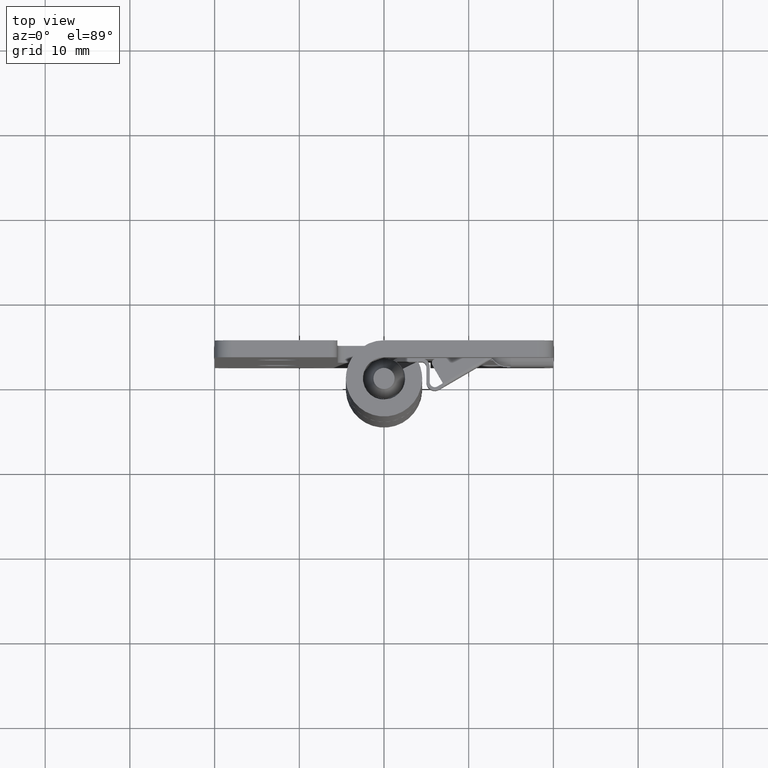
[diagram: clean part render]
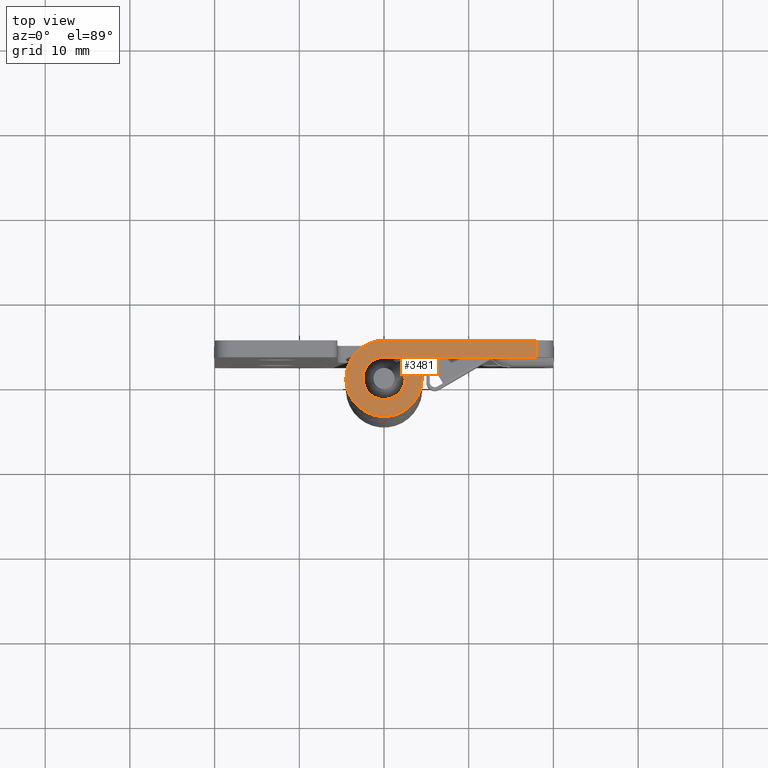
[diagram: same view with one face highlighted and labeled with its STEP entity id]
A machine part, top view. The second image highlights one B-rep face of the part: STEP entity #3481.
In plain terms, the highlighted face is a freeform B-spline surface patch.
Its self-contained STEP definition (entity closure, byte-faithful):
#3377=CARTESIAN_POINT('',(-5.623858634750180,4.949546826503971,75.0));
#3378=CARTESIAN_POINT('',(19.123874783371061,4.949546826503971,75.0));
#3379=CARTESIAN_POINT('',(-5.623858634750180,-4.949483883337430,75.0));
#3380=CARTESIAN_POINT('',(19.123874783371061,-4.949483883337430,75.0));
#3381=B_SPLINE_SURFACE_WITH_KNOTS('',1,1,((#3377,#3379),(#3378,#3380)),.UNSPECIFIED.,.F.,.F.,.U.,(2,2),(2,2),(0.0,24.747733418121239),(0.0,9.899030709841401),.UNSPECIFIED.);
#3382=CARTESIAN_POINT('',(-6.924698E-012,2.499999999999970,75.0));
#3383=VERTEX_POINT('',#3382);
#3384=CARTESIAN_POINT('',(17.999999999984951,2.499999999941780,75.0));
#3385=VERTEX_POINT('',#3384);
#3386=CARTESIAN_POINT('',(-6.924698E-012,2.499999999999970,75.0));
#3387=CARTESIAN_POINT('',(17.999999999984951,2.499999999941780,75.0));
#3388=QUASI_UNIFORM_CURVE('',1,(#3386,#3387),.UNSPECIFIED.,.F.,.U.);
#3389=EDGE_CURVE('',#3383,#3385,#3388,.T.);
#3390=ORIENTED_EDGE('',*,*,#3389,.T.);
#3391=CARTESIAN_POINT('',(17.999999999984951,4.500000000005639,75.0));
#3392=VERTEX_POINT('',#3391);
#3393=CARTESIAN_POINT('',(17.999999999984951,2.499999999941780,75.0));
#3394=CARTESIAN_POINT('',(17.999999999984951,4.500000000005639,75.0));
#3395=QUASI_UNIFORM_CURVE('',1,(#3393,#3394),.UNSPECIFIED.,.F.,.U.);
#3396=EDGE_CURVE('',#3385,#3392,#3395,.T.);
#3397=ORIENTED_EDGE('',*,*,#3396,.T.);
#3398=CARTESIAN_POINT('',(-1.644524E-011,4.499999999999945,75.0));
#3399=VERTEX_POINT('',#3398);
#3400=CARTESIAN_POINT('',(17.999999999984951,4.500000000005639,75.0));
#3401=CARTESIAN_POINT('',(-1.644524E-011,4.499999999999945,75.0));
#3402=QUASI_UNIFORM_CURVE('',1,(#3400,#3401),.UNSPECIFIED.,.F.,.U.);
#3403=EDGE_CURVE('',#3392,#3399,#3402,.T.);
#3404=ORIENTED_EDGE('',*,*,#3403,.T.);
#3405=CARTESIAN_POINT('',(4.031128874140700,1.999999999986910,75.0));
#3406=VERTEX_POINT('',#3405);
#3407=CARTESIAN_POINT('',(-1.644524E-011,4.499999999999945,75.0));
#3408=CARTESIAN_POINT('',(-0.363726833145000,4.500098240123594,75.000000000000099));
#3409=CARTESIAN_POINT('',(-0.969866993867856,4.426062215959576,74.999999999999801));
#3410=CARTESIAN_POINT('',(-1.921445918771684,4.107333016680152,75.000000000000185));
#3411=CARTESIAN_POINT('',(-2.618198059364917,3.693967261640413,74.999999999999815));
#3412=CARTESIAN_POINT('',(-3.233058877936799,3.151932739061722,75.000000000000043));
#3413=CARTESIAN_POINT('',(-3.746910407301767,2.550570871619129,74.999999999999957));
#3414=CARTESIAN_POINT('',(-4.127369984130626,1.853841361272362,75.000000000000313));
#3415=CARTESIAN_POINT('',(-4.387510041240491,1.076573085674258,74.999999999999645));
#3416=CARTESIAN_POINT('',(-4.496630364916807,0.446534470083038,75.000000000000185));
#3417=CARTESIAN_POINT('',(-4.508149053892745,-0.327734792960270,74.999999999999915));
#3418=CARTESIAN_POINT('',(-4.399011446458612,-1.066117336116135,75.000000000000185));
#3419=CARTESIAN_POINT('',(-4.159816294941803,-1.755974692052169,74.999999999999432));
#3420=CARTESIAN_POINT('',(-3.833474231353012,-2.390358578239280,75.000000000003482));
#3421=CARTESIAN_POINT('',(-3.431671184119727,-2.945289833515163,74.999999999992710));
#3422=CARTESIAN_POINT('',(-2.876451260666674,-3.486172622280757,75.000000000004903));
#3423=CARTESIAN_POINT('',(-2.278301943041109,-3.904857720879542,75.000000000002842));
#3424=CARTESIAN_POINT('',(-1.564322576777541,-4.244476457107091,74.999999999995225));
#3425=CARTESIAN_POINT('',(-0.830080287172786,-4.445455176371450,75.000000000002416));
#3426=CARTESIAN_POINT('',(-0.118981959750603,-4.513488610133367,74.999999999999631));
#3427=CARTESIAN_POINT('',(0.548582828044730,-4.482740876918162,75.000000000000043));
#3428=CARTESIAN_POINT('',(1.160456879808319,-4.363461361229168,75.0));
#3429=CARTESIAN_POINT('',(1.820294672215233,-4.134518129780338,75.000000000000028));
#3430=CARTESIAN_POINT('',(2.372115465619636,-3.843341370760419,74.999999999999972));
#3431=CARTESIAN_POINT('',(2.947698335421582,-3.421883882948400,75.000000000000028));
#3432=CARTESIAN_POINT('',(3.478589925353987,-2.898274762744289,75.000000000000028));
#3433=CARTESIAN_POINT('',(3.917420020901932,-2.257241034625710,74.999999999999986));
#3434=CARTESIAN_POINT('',(4.268386133020586,-1.499195857715793,74.999999999999915));
#3435=CARTESIAN_POINT('',(4.504728259997100,-0.599522777886246,75.000000000000867));
#3436=CARTESIAN_POINT('',(4.518720396625004,0.378703525663124,74.999999999997129));
#3437=CARTESIAN_POINT('',(4.339252339877284,1.273175402888076,75.000000000006821));
#3438=CARTESIAN_POINT('',(4.152391255979336,1.755651502811598,74.999999999989072));
#3439=CARTESIAN_POINT('',(4.031128874140700,1.999999999986910,75.0));
#3440=B_SPLINE_CURVE_WITH_KNOTS('',3,(#3407,#3408,#3409,#3410,#3411,#3412,#3413,#3414,#3415,#3416,#3417,#3418,#3419,#3420,#3421,#3422,#3423,#3424,#3425,#3426,#3427,#3428,#3429,#3430,#3431,#3432,#3433,#3434,#3435,#3436,#3437,#3438,#3439),.UNSPECIFIED.,.F.,.U.,(4,1,1,1,1,1,1,1,1,1,1,1,1,1,1,1,1,1,1,1,1,1,1,1,1,1,1,1,1,1,4),(0.000000371172870,1.091155485234538,1.818600829649387,3.000727310046177,3.500848027910639,4.273763606505856,5.364970308854879,5.865009129258713,6.728863571711095,7.274455920300591,8.183789825086921,8.956709434517267,9.456842090033069,10.320686282610650,11.002666865862381,11.775556419949130,12.503005517543739,13.366841943965481,14.048840293011841,14.639897276569240,15.367345887117930,15.912935550222651,16.731320740207739,17.231458102176830,18.049781101726708,18.959094791227169,19.550168743436309,20.550413858786172,21.732520613680091,22.459994737205971,23.278342379576660),.UNSPECIFIED.);
#3441=EDGE_CURVE('',#3399,#3406,#3440,.T.);
#3442=ORIENTED_EDGE('',*,*,#3441,.T.);
#3443=CARTESIAN_POINT('',(2.239516041182640,1.111111111103780,75.0));
#3444=VERTEX_POINT('',#3443);
#3445=CARTESIAN_POINT('',(4.031128874140700,1.999999999986910,75.0));
#3446=CARTESIAN_POINT('',(2.239516041182640,1.111111111103780,75.0));
#3447=QUASI_UNIFORM_CURVE('',1,(#3445,#3446),.UNSPECIFIED.,.F.,.U.);
#3448=EDGE_CURVE('',#3406,#3444,#3447,.T.);
#3449=ORIENTED_EDGE('',*,*,#3448,.T.);
#3450=CARTESIAN_POINT('',(-6.924698E-012,2.499999999999970,75.0));
#3451=CARTESIAN_POINT('',(-0.185213965467553,2.500012999561753,75.000000000000028));
#3452=CARTESIAN_POINT('',(-0.623052741183038,2.451208381128718,74.999999999999858));
#3453=CARTESIAN_POINT('',(-1.178028679679755,2.233552126983022,75.000000000000156));
#3454=CARTESIAN_POINT('',(-1.605716179107950,1.930425673432803,74.999999999999844));
#3455=CARTESIAN_POINT('',(-1.930428266732491,1.610552295111655,75.000000000000227));
#3456=CARTESIAN_POINT('',(-2.183142986131216,1.249730026723090,74.999999999999730));
#3457=CARTESIAN_POINT('',(-2.375549460686031,0.817612627227618,75.000000000000284));
#3458=CARTESIAN_POINT('',(-2.508107221581398,0.293002194748811,74.999999999999602));
#3459=CARTESIAN_POINT('',(-2.510775685816439,-0.269045586315356,75.000000000000327));
#3460=CARTESIAN_POINT('',(-2.379268917146594,-0.811363594426485,74.999999999999844));
#3461=CARTESIAN_POINT('',(-2.186419411114459,-1.243755099309569,75.000000000000895));
#3462=CARTESIAN_POINT('',(-1.924030654575977,-1.617905901575199,74.999999999998764));
#3463=CARTESIAN_POINT('',(-1.538765449531731,-1.997164965382904,75.000000000000412));
#3464=CARTESIAN_POINT('',(-1.076258967993411,-2.283978175319360,74.999999999999588));
#3465=CARTESIAN_POINT('',(-0.560891674186167,-2.450493294786420,74.999999999999773));
#3466=CARTESIAN_POINT('',(-0.024875893280693,-2.521068783100966,74.999999999999659));
#3467=CARTESIAN_POINT('',(0.550970538982007,-2.468243311159165,75.000000000001876));
#3468=CARTESIAN_POINT('',(1.187408917216332,-2.232900206801912,74.999999999996291));
#3469=CARTESIAN_POINT('',(1.659085632876199,-1.898393663997399,75.000000000000810));
#3470=CARTESIAN_POINT('',(1.997619367620431,-1.521214678576210,74.999999999999986));
#3471=CARTESIAN_POINT('',(2.262064608502628,-1.108776891854933,74.999999999999901));
#3472=CARTESIAN_POINT('',(2.476281966770307,-0.536057988983034,75.000000000000043));
#3473=CARTESIAN_POINT('',(2.536277057735032,0.262273665750902,74.999999999999957));
#3474=CARTESIAN_POINT('',(2.381986588848845,0.824612192160915,75.000000000000099));
#3475=CARTESIAN_POINT('',(2.239516041182640,1.111111111103780,75.0));
#3476=B_SPLINE_CURVE_WITH_KNOTS('',3,(#3450,#3451,#3452,#3453,#3454,#3455,#3456,#3457,#3458,#3459,#3460,#3461,#3462,#3463,#3464,#3465,#3466,#3467,#3468,#3469,#3470,#3471,#3472,#3473,#3474,#3475),.UNSPECIFIED.,.F.,.U.,(4,1,1,1,1,1,1,1,1,1,1,1,1,1,1,1,1,1,1,1,1,1,1,4),(0.000000192405645,0.555665572741063,1.313458317471453,1.768131788344419,2.121763753803018,2.677478931576395,3.081608201098666,3.536213196242601,4.294018648159167,4.748678068758096,5.203354350616714,5.708543192293035,6.112703255544943,6.819874317013903,7.325066656236425,7.729223221953273,8.436498666039213,9.042705490074521,9.749942492067644,10.154059114478160,10.558210971659751,11.214966699606700,11.972755401675480,12.932577417130339),.UNSPECIFIED.);
#3477=EDGE_CURVE('',#3383,#3444,#3476,.T.);
#3478=ORIENTED_EDGE('',*,*,#3477,.F.);
#3479=EDGE_LOOP('',(#3390,#3397,#3404,#3442,#3449,#3478));
#3480=FACE_OUTER_BOUND('',#3479,.T.);
#3481=ADVANCED_FACE('',(#3480),#3381,.F.);